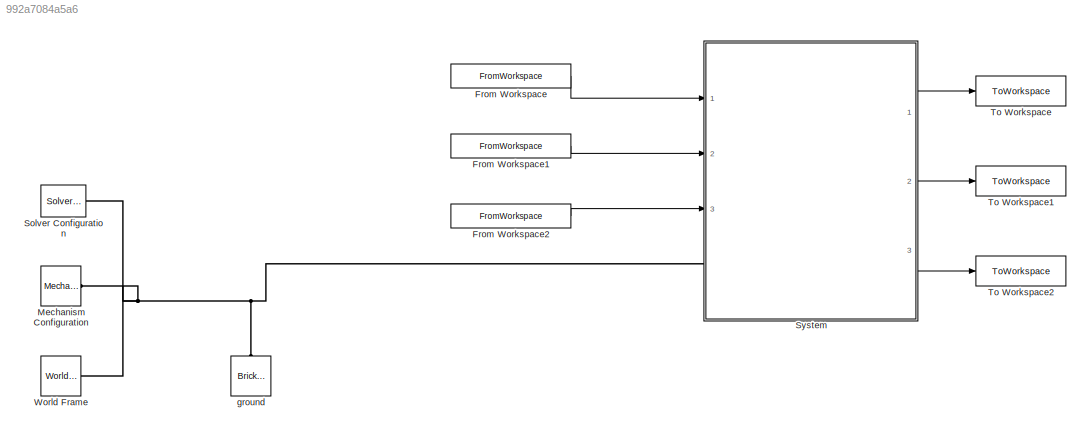
MODEL slx_992a7084a5a6
KIND model
CONFIG AbsTol = auto
CONFIG EnableMultiTasking = off
CONFIG FixedStep = auto
CONFIG MaxStep = auto
CONFIG MinStep = auto
CONFIG RelTol = 1e-3
CONFIG SampleTimeConstraint = Unconstrained
CONFIG SolverName = VariableStepAuto
CONFIG StartTime = 0.0
CONFIG StopTime = tf
BLOCK [FromWorkspace] From Workspace
  VariableName = theta1_timeseries
BLOCK [FromWorkspace] From Workspace1
  VariableName = theta2_timeseries
BLOCK [FromWorkspace] From Workspace2
  VariableName = theta3_timeseries
BLOCK [Reference] Mechanism Configuration  REF=sm_lib/Utilities/Mechanism
Configuration
  Ports = [0, 0, 0, 0, 0, 0, 1]
  SourceBlock = sm_lib/Utilities/Mechanism\nConfiguration
  SourceProductBaseCode = MS
  SourceType = Mechanism\nConfiguration
BLOCK [Reference] Solver Configuration  REF=nesl_utility/Solver
Configuration
  Ports = [0, 0, 0, 0, 0, 0, 1]
  SourceBlock = nesl_utility/Solver\nConfiguration
  SourceProductBaseCode = PW,SS
  SourceType = Solver\nConfiguration
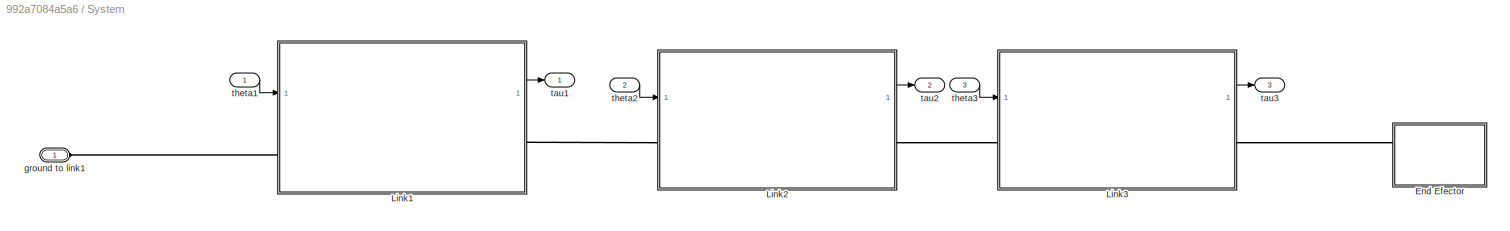
BLOCK [SubSystem] System
  Ports = [3, 3, 0, 0, 0, 1]
  RequestExecContextInheritance = off
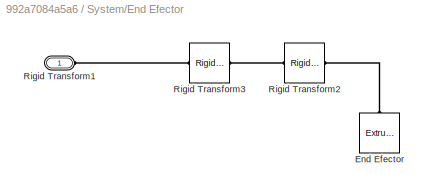
BLOCK [SubSystem] System/End Efector
  Ports = [0, 0, 0, 0, 0, 1]
  RequestExecContextInheritance = off
BLOCK [Reference] System/End Efector/End Efector  REF=sm_lib/Body Elements/Extruded Solid
  NameLocation = right
  Ports = [0, 0, 0, 0, 0, 0, 1]
  SourceBlock = sm_lib/Body Elements/Extruded Solid
  SourceProductBaseCode = MS
  SourceType = Extruded Solid
BLOCK [PMIOPort] System/End Efector/Rigid Transform1
  Side = Left
BLOCK [Reference] System/End Efector/Rigid Transform2  REF=sm_lib/Frames and
Transforms/Rigid
Transform
  Ports = [0, 0, 0, 0, 0, 1, 1]
  SourceBlock = sm_lib/Frames and\nTransforms/Rigid\nTransform
  SourceProductBaseCode = MS
  SourceType = Rigid\nTransform
BLOCK [Reference] System/End Efector/Rigid Transform3  REF=sm_lib/Frames and
Transforms/Rigid
Transform
  Ports = [0, 0, 0, 0, 0, 1, 1]
  SourceBlock = sm_lib/Frames and\nTransforms/Rigid\nTransform
  SourceProductBaseCode = MS
  SourceType = Rigid\nTransform
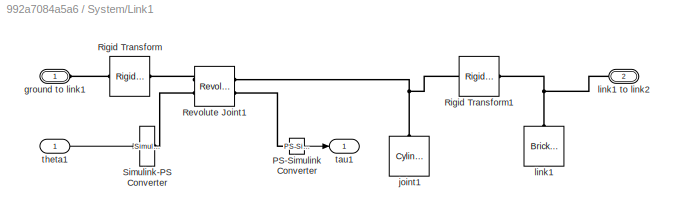
BLOCK [SubSystem] System/Link1
  Ports = [1, 1, 0, 0, 0, 1, 1]
  RequestExecContextInheritance = off
BLOCK [Reference] System/Link1/PS-Simulink Converter  REF=nesl_utility/PS-Simulink
Converter
  Ports = [0, 1, 0, 0, 0, 1]
  SourceBlock = nesl_utility/PS-Simulink\nConverter
  SourceProductBaseCode = PW,SS
  SourceType = PS-Simulink\nConverter
BLOCK [Reference] System/Link1/Revolute Joint1  REF=sm_lib/Joints/Revolute Joint
  Ports = [0, 0, 0, 0, 0, 2, 2]
  SourceBlock = sm_lib/Joints/Revolute Joint
  SourceProductBaseCode = MS
  SourceType = Revolute Joint
BLOCK [Reference] System/Link1/Rigid Transform  REF=sm_lib/Frames and
Transforms/Rigid
Transform
  Ports = [0, 0, 0, 0, 0, 1, 1]
  SourceBlock = sm_lib/Frames and\nTransforms/Rigid\nTransform
  SourceProductBaseCode = MS
  SourceType = Rigid\nTransform
BLOCK [Reference] System/Link1/Rigid Transform1  REF=sm_lib/Frames and
Transforms/Rigid
Transform
  Ports = [0, 0, 0, 0, 0, 1, 1]
  SourceBlock = sm_lib/Frames and\nTransforms/Rigid\nTransform
  SourceProductBaseCode = MS
  SourceType = Rigid\nTransform
BLOCK [Reference] System/Link1/Simulink-PS Converter  REF=nesl_utility/Simulink-PS
Converter
  Ports = [1, 0, 0, 0, 0, 0, 1]
  SourceBlock = nesl_utility/Simulink-PS\nConverter
  SourceProductBaseCode = PW,SS
  SourceType = Simulink-PS\nConverter
BLOCK [PMIOPort] System/Link1/ground to link1
  Side = Left
BLOCK [Reference] System/Link1/joint1  REF=sm_lib/Body Elements/Cylindrical Solid
  NameLocation = right
  Ports = [0, 0, 0, 0, 0, 0, 1]
  SourceBlock = sm_lib/Body Elements/Cylindrical Solid
  SourceProductBaseCode = MS
  SourceType = Cylindrical Solid
BLOCK [Reference] System/Link1/link1  REF=sm_lib/Body Elements/Brick Solid
  NameLocation = right
  Ports = [0, 0, 0, 0, 0, 0, 1]
  SourceBlock = sm_lib/Body Elements/Brick Solid
  SourceProductBaseCode = MS
  SourceType = Brick Solid
BLOCK [PMIOPort] System/Link1/link1 to link2
  NameLocation = top
  Port = 2
  Side = Right
BLOCK [Outport] System/Link1/tau1
BLOCK [Inport] System/Link1/theta1
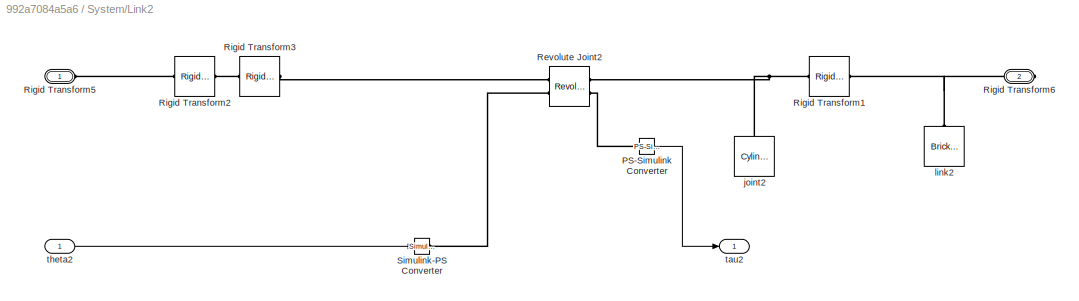
BLOCK [SubSystem] System/Link2
  Ports = [1, 1, 0, 0, 0, 1, 1]
  RequestExecContextInheritance = off
BLOCK [Reference] System/Link2/PS-Simulink Converter  REF=nesl_utility/PS-Simulink
Converter
  Ports = [0, 1, 0, 0, 0, 1]
  SourceBlock = nesl_utility/PS-Simulink\nConverter
  SourceProductBaseCode = PW,SS
  SourceType = PS-Simulink\nConverter
BLOCK [Reference] System/Link2/Revolute Joint2  REF=sm_lib/Joints/Revolute Joint
  Ports = [0, 0, 0, 0, 0, 2, 2]
  SourceBlock = sm_lib/Joints/Revolute Joint
  SourceProductBaseCode = MS
  SourceType = Revolute Joint
BLOCK [Reference] System/Link2/Rigid Transform1  REF=sm_lib/Frames and
Transforms/Rigid
Transform
  Ports = [0, 0, 0, 0, 0, 1, 1]
  SourceBlock = sm_lib/Frames and\nTransforms/Rigid\nTransform
  SourceProductBaseCode = MS
  SourceType = Rigid\nTransform
BLOCK [Reference] System/Link2/Rigid Transform2  REF=sm_lib/Frames and
Transforms/Rigid
Transform
  Ports = [0, 0, 0, 0, 0, 1, 1]
  SourceBlock = sm_lib/Frames and\nTransforms/Rigid\nTransform
  SourceProductBaseCode = MS
  SourceType = Rigid\nTransform
BLOCK [Reference] System/Link2/Rigid Transform3  REF=sm_lib/Frames and
Transforms/Rigid
Transform
  Ports = [0, 0, 0, 0, 0, 1, 1]
  SourceBlock = sm_lib/Frames and\nTransforms/Rigid\nTransform
  SourceProductBaseCode = MS
  SourceType = Rigid\nTransform
BLOCK [PMIOPort] System/Link2/Rigid Transform5
  Side = Left
BLOCK [PMIOPort] System/Link2/Rigid Transform6
  NameLocation = top
  Port = 2
  Side = Right
BLOCK [Reference] System/Link2/Simulink-PS Converter  REF=nesl_utility/Simulink-PS
Converter
  Ports = [1, 0, 0, 0, 0, 0, 1]
  SourceBlock = nesl_utility/Simulink-PS\nConverter
  SourceProductBaseCode = PW,SS
  SourceType = Simulink-PS\nConverter
BLOCK [Reference] System/Link2/joint2  REF=sm_lib/Body Elements/Cylindrical Solid
  NameLocation = right
  Ports = [0, 0, 0, 0, 0, 0, 1]
  SourceBlock = sm_lib/Body Elements/Cylindrical Solid
  SourceProductBaseCode = MS
  SourceType = Cylindrical Solid
BLOCK [Reference] System/Link2/link2  REF=sm_lib/Body Elements/Brick Solid
  NameLocation = right
  Ports = [0, 0, 0, 0, 0, 0, 1]
  SourceBlock = sm_lib/Body Elements/Brick Solid
  SourceProductBaseCode = MS
  SourceType = Brick Solid
BLOCK [Outport] System/Link2/tau2
BLOCK [Inport] System/Link2/theta2
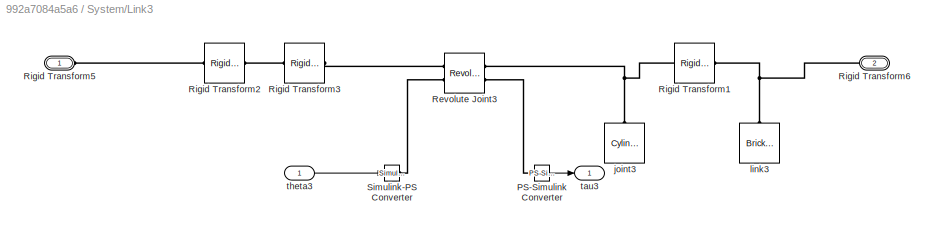
BLOCK [SubSystem] System/Link3
  Ports = [1, 1, 0, 0, 0, 1, 1]
  RequestExecContextInheritance = off
BLOCK [Reference] System/Link3/PS-Simulink Converter  REF=nesl_utility/PS-Simulink
Converter
  Ports = [0, 1, 0, 0, 0, 1]
  SourceBlock = nesl_utility/PS-Simulink\nConverter
  SourceProductBaseCode = PW,SS
  SourceType = PS-Simulink\nConverter
BLOCK [Reference] System/Link3/Revolute Joint3  REF=sm_lib/Joints/Revolute Joint
  Ports = [0, 0, 0, 0, 0, 2, 2]
  SourceBlock = sm_lib/Joints/Revolute Joint
  SourceProductBaseCode = MS
  SourceType = Revolute Joint
BLOCK [Reference] System/Link3/Rigid Transform1  REF=sm_lib/Frames and
Transforms/Rigid
Transform
  Ports = [0, 0, 0, 0, 0, 1, 1]
  SourceBlock = sm_lib/Frames and\nTransforms/Rigid\nTransform
  SourceProductBaseCode = MS
  SourceType = Rigid\nTransform
BLOCK [Reference] System/Link3/Rigid Transform2  REF=sm_lib/Frames and
Transforms/Rigid
Transform
  Ports = [0, 0, 0, 0, 0, 1, 1]
  SourceBlock = sm_lib/Frames and\nTransforms/Rigid\nTransform
  SourceProductBaseCode = MS
  SourceType = Rigid\nTransform
BLOCK [Reference] System/Link3/Rigid Transform3  REF=sm_lib/Frames and
Transforms/Rigid
Transform
  Ports = [0, 0, 0, 0, 0, 1, 1]
  SourceBlock = sm_lib/Frames and\nTransforms/Rigid\nTransform
  SourceProductBaseCode = MS
  SourceType = Rigid\nTransform
BLOCK [PMIOPort] System/Link3/Rigid Transform5
  Side = Left
BLOCK [PMIOPort] System/Link3/Rigid Transform6
  NameLocation = top
  Port = 2
  Side = Right
BLOCK [Reference] System/Link3/Simulink-PS Converter  REF=nesl_utility/Simulink-PS
Converter
  Ports = [1, 0, 0, 0, 0, 0, 1]
  SourceBlock = nesl_utility/Simulink-PS\nConverter
  SourceProductBaseCode = PW,SS
  SourceType = Simulink-PS\nConverter
BLOCK [Reference] System/Link3/joint3  REF=sm_lib/Body Elements/Cylindrical Solid
  NameLocation = right
  Ports = [0, 0, 0, 0, 0, 0, 1]
  SourceBlock = sm_lib/Body Elements/Cylindrical Solid
  SourceProductBaseCode = MS
  SourceType = Cylindrical Solid
BLOCK [Reference] System/Link3/link3  REF=sm_lib/Body Elements/Brick Solid
  NameLocation = right
  Ports = [0, 0, 0, 0, 0, 0, 1]
  SourceBlock = sm_lib/Body Elements/Brick Solid
  SourceProductBaseCode = MS
  SourceType = Brick Solid
BLOCK [Outport] System/Link3/tau3
BLOCK [Inport] System/Link3/theta3
BLOCK [PMIOPort] System/ground to link1
  Side = Left
BLOCK [Outport] System/tau1
BLOCK [Outport] System/tau2
  Port = 2
BLOCK [Outport] System/tau3
  Port = 3
BLOCK [Inport] System/theta1
BLOCK [Inport] System/theta2
  Port = 2
BLOCK [Inport] System/theta3
  Port = 3
BLOCK [ToWorkspace] To Workspace
  FixptAsFi = on
  MaxDataPoints = inf
  Ports = [1]
  SampleTime = -1
  SaveFormat = Timeseries
  VariableName = tau1_simulink
BLOCK [ToWorkspace] To Workspace1
  FixptAsFi = on
  MaxDataPoints = inf
  Ports = [1]
  SampleTime = -1
  SaveFormat = Timeseries
  VariableName = tau2_simulink
BLOCK [ToWorkspace] To Workspace2
  FixptAsFi = on
  MaxDataPoints = inf
  Ports = [1]
  SampleTime = -1
  SaveFormat = Timeseries
  VariableName = tau3_simulink
BLOCK [Reference] World Frame  REF=sm_lib/Frames and
Transforms/World Frame
  Ports = [0, 0, 0, 0, 0, 0, 1]
  SourceBlock = sm_lib/Frames and\nTransforms/World Frame
  SourceProductBaseCode = MS
  SourceType = World Frame
BLOCK [Reference] ground  REF=sm_lib/Body Elements/Brick Solid
  NameLocation = right
  Ports = [0, 0, 0, 0, 0, 0, 1]
  SourceBlock = sm_lib/Body Elements/Brick Solid
  SourceProductBaseCode = MS
  SourceType = Brick Solid
LINE From Workspace1:1 -> System:2
LINE From Workspace2:1 -> System:3
LINE From Workspace:1 -> System:1
LINE System/Link1/PS-Simulink Converter:1 -> System/Link1/tau1:1
LINE System/Link1/theta1:1 -> System/Link1/Simulink-PS Converter:1
LINE System/Link1:1 -> System/tau1:1
LINE System/Link2/PS-Simulink Converter:1 -> System/Link2/tau2:1
LINE System/Link2/theta2:1 -> System/Link2/Simulink-PS Converter:1
LINE System/Link2:1 -> System/tau2:1
LINE System/Link3/PS-Simulink Converter:1 -> System/Link3/tau3:1
LINE System/Link3/theta3:1 -> System/Link3/Simulink-PS Converter:1
LINE System/Link3:1 -> System/tau3:1
LINE System/theta1:1 -> System/Link1:1
LINE System/theta2:1 -> System/Link2:1
LINE System/theta3:1 -> System/Link3:1
LINE System:1 -> To Workspace:1
LINE System:2 -> To Workspace1:1
LINE System:3 -> To Workspace2:1
PNET net1: Mechanism Configuration:RConn1 -- Solver Configuration:RConn1 -- System:LConn1 -- World Frame:RConn1 -- ground:RConn1
PLINE System/End Efector/End Efector:RConn1 -- System/End Efector/Rigid Transform2:RConn1
PLINE System/End Efector/Rigid Transform1:RConn1 -- System/End Efector/Rigid Transform3:LConn1
PLINE System/End Efector/Rigid Transform2:LConn1 -- System/End Efector/Rigid Transform3:RConn1
PLINE System/End Efector:LConn1 -- System/Link3:RConn1
PLINE System/Link1/PS-Simulink Converter:LConn1 -- System/Link1/Revolute Joint1:RConn2
PLINE System/Link1/Revolute Joint1:LConn1 -- System/Link1/Rigid Transform:RConn1
PLINE System/Link1/Revolute Joint1:LConn2 -- System/Link1/Simulink-PS Converter:RConn1
PNET net2: System/Link1/Revolute Joint1:RConn1 -- System/Link1/Rigid Transform1:LConn1 -- System/Link1/joint1:RConn1
PNET net3: System/Link1/Rigid Transform1:RConn1 -- System/Link1/link1 to link2:RConn1 -- System/Link1/link1:RConn1
PLINE System/Link1/Rigid Transform:LConn1 -- System/Link1/ground to link1:RConn1
PLINE System/Link1:LConn1 -- System/ground to link1:RConn1
PLINE System/Link1:RConn1 -- System/Link2:LConn1
PLINE System/Link2/PS-Simulink Converter:LConn1 -- System/Link2/Revolute Joint2:RConn2
PLINE System/Link2/Revolute Joint2:LConn1 -- System/Link2/Rigid Transform3:RConn1
PLINE System/Link2/Revolute Joint2:LConn2 -- System/Link2/Simulink-PS Converter:RConn1
PNET net4: System/Link2/Revolute Joint2:RConn1 -- System/Link2/Rigid Transform1:LConn1 -- System/Link2/joint2:RConn1
PNET net5: System/Link2/Rigid Transform1:RConn1 -- System/Link2/Rigid Transform6:RConn1 -- System/Link2/link2:RConn1
PLINE System/Link2/Rigid Transform2:LConn1 -- System/Link2/Rigid Transform5:RConn1
PLINE System/Link2/Rigid Transform2:RConn1 -- System/Link2/Rigid Transform3:LConn1
PLINE System/Link2:RConn1 -- System/Link3:LConn1
PLINE System/Link3/PS-Simulink Converter:LConn1 -- System/Link3/Revolute Joint3:RConn2
PLINE System/Link3/Revolute Joint3:LConn1 -- System/Link3/Rigid Transform3:RConn1
PLINE System/Link3/Revolute Joint3:LConn2 -- System/Link3/Simulink-PS Converter:RConn1
PNET net6: System/Link3/Revolute Joint3:RConn1 -- System/Link3/Rigid Transform1:LConn1 -- System/Link3/joint3:RConn1
PNET net7: System/Link3/Rigid Transform1:RConn1 -- System/Link3/Rigid Transform6:RConn1 -- System/Link3/link3:RConn1
PLINE System/Link3/Rigid Transform2:LConn1 -- System/Link3/Rigid Transform5:RConn1
PLINE System/Link3/Rigid Transform2:RConn1 -- System/Link3/Rigid Transform3:LConn1
note: PNET lines group multi-terminal physical nets as a canonical sorted terminal list (undirected conserving connections); 2-terminal nets keep the pairwise PLINE form
